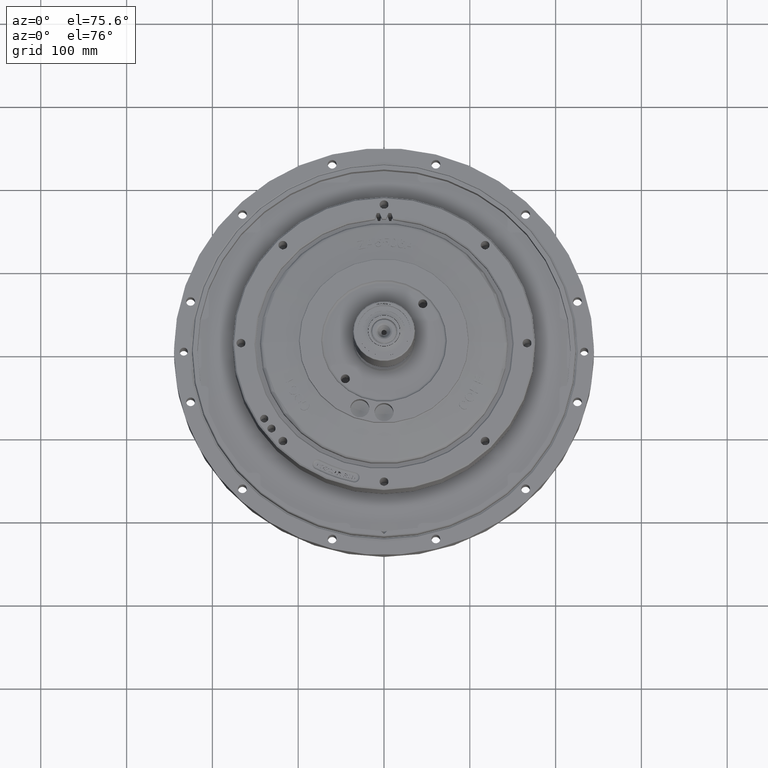
[diagram: clean part render]
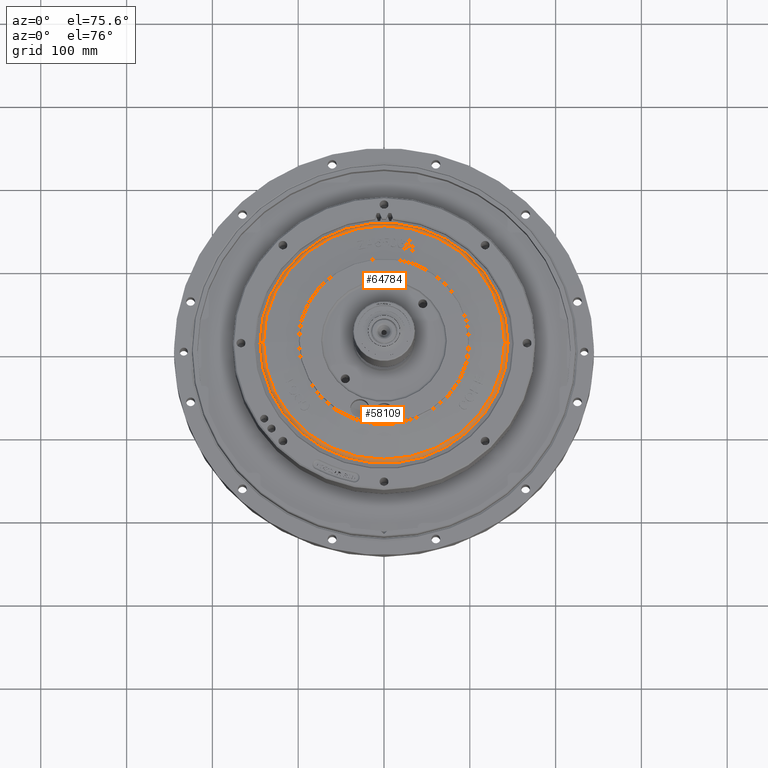
[diagram: same view with one multi-face feature highlighted, each face labeled with its STEP entity id]
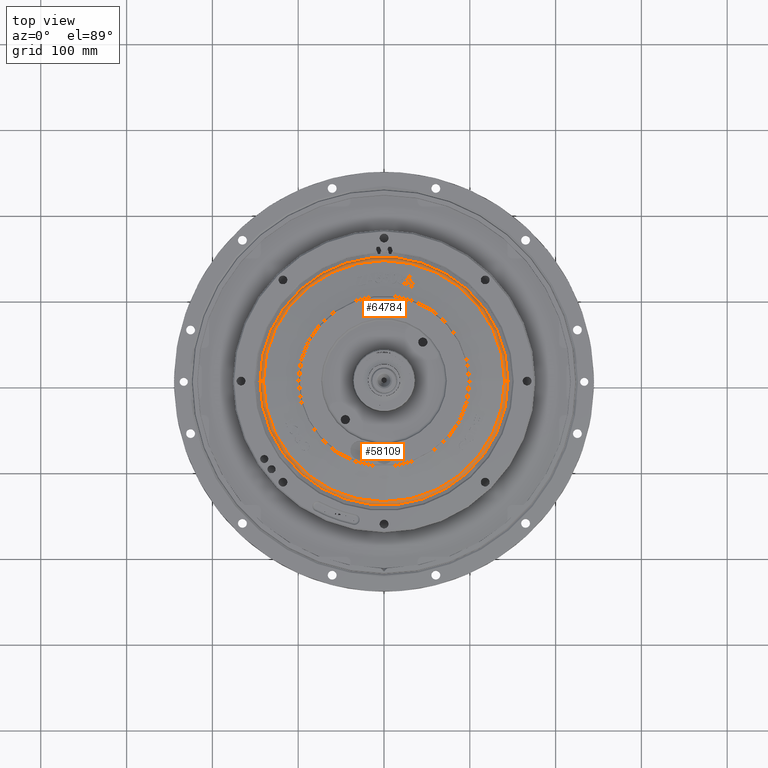
[diagram: same view with one multi-face feature highlighted, each face labeled with its STEP entity id]
A machine part, auxiliary view. The highlighted faces form ONE feature: a constant-radius fillet chain: 2 tangent blend faces with common blend radius 4.826 mm. The faces share edges in the B-rep.
A second angle (top view) of the same feature is appended — it is thin or edge-on in the first view.
Their STEP definitions:
[1] entity #58109 (Torus):
#3304 = DIRECTION ( 'NONE',  ( 1.000000000000000000, 0.0000000000000000000, 0.0000000000000000000 ) ) ;
#3310 = CARTESIAN_POINT ( 'NONE',  ( 0.0000000000000000000, 0.0000000000000000000, 38.10663730205632000 ) ) ;
#3343 = DIRECTION ( 'NONE',  ( -0.0000000000000000000, -0.0000000000000000000, 1.000000000000000000 ) ) ;
#12590 = FACE_OUTER_BOUND ( 'NONE', #30695, .T. ) ;
#12681 = TOROIDAL_SURFACE ( 'NONE', #36253, 139.8707088640026900, 4.826000000000065300 ) ;
#18363 = EDGE_CURVE ( 'NONE', #22300, #22148, #34083, .T. ) ;
#18372 = EDGE_CURVE ( 'NONE', #22106, #22300, #34111, .T. ) ;
#18373 = EDGE_CURVE ( 'NONE', #22148, #22013, #34114, .T. ) ;
#18445 = EDGE_CURVE ( 'NONE', #22106, #22013, #34322, .T. ) ;
#22013 = VERTEX_POINT ( 'NONE', #26258 ) ;
#22106 = VERTEX_POINT ( 'NONE', #26410 ) ;
#22148 = VERTEX_POINT ( 'NONE', #26196 ) ;
#22300 = VERTEX_POINT ( 'NONE', #26310 ) ;
#22408 = AXIS2_PLACEMENT_3D ( 'NONE', #48693, #48694, #48695 ) ;
#22413 = AXIS2_PLACEMENT_3D ( 'NONE', #48618, #49062, #49059 ) ;
#22463 = AXIS2_PLACEMENT_3D ( 'NONE', #48683, #49063, #49055 ) ;
#22557 = AXIS2_PLACEMENT_3D ( 'NONE', #48945, #48560, #48561 ) ;
#26196 = CARTESIAN_POINT ( 'NONE',  ( -140.5075037659497900, 1.744938014824897800E-014, 42.89044000000024000 ) ) ;
#26258 = CARTESIAN_POINT ( 'NONE',  ( 140.5075037659497900, 0.0000000000000000000, 42.89044000000024000 ) ) ;
#26310 = CARTESIAN_POINT ( 'NONE',  ( -144.4625000000000100, 1.769155382218244900E-014, 39.59180738099582400 ) ) ;
#26410 = CARTESIAN_POINT ( 'NONE',  ( 144.4625000000000100, 0.0000000000000000000, 39.59180738099582400 ) ) ;
#30695 = EDGE_LOOP ( 'NONE', ( #32484, #32879, #32637, #32549 ) ) ;
#32484 = ORIENTED_EDGE ( 'NONE', *, *, #18363, .F. ) ;
#32549 = ORIENTED_EDGE ( 'NONE', *, *, #18373, .F. ) ;
#32637 = ORIENTED_EDGE ( 'NONE', *, *, #18445, .T. ) ;
#32879 = ORIENTED_EDGE ( 'NONE', *, *, #18372, .F. ) ;
#34083 = CIRCLE ( 'NONE', #22408, 4.826000000000052000 ) ;
#34111 = CIRCLE ( 'NONE', #22413, 144.4625000000000100 ) ;
#34114 = CIRCLE ( 'NONE', #22463, 140.5075037659497900 ) ;
#34322 = CIRCLE ( 'NONE', #22557, 4.826000000000066200 ) ;
#36253 = AXIS2_PLACEMENT_3D ( 'NONE', #3310, #3343, #3304 ) ;
#48560 = DIRECTION ( 'NONE',  ( 0.0000000000000000000, -1.000000000000000000, 0.0000000000000000000 ) ) ;
#48561 = DIRECTION ( 'NONE',  ( 0.0000000000000000000, 0.0000000000000000000, -1.000000000000000000 ) ) ;
#48618 = CARTESIAN_POINT ( 'NONE',  ( 0.0000000000000000000, 0.0000000000000000000, 39.59180738099582400 ) ) ;
#48683 = CARTESIAN_POINT ( 'NONE',  ( 0.0000000000000000000, 0.0000000000000000000, 42.89044000000024000 ) ) ;
#48693 = CARTESIAN_POINT ( 'NONE',  ( -139.8707088640026900, 1.712922159047722100E-014, 38.10663730205632000 ) ) ;
#48694 = DIRECTION ( 'NONE',  ( 1.224646799147353200E-016, 1.000000000000000000, 0.0000000000000000000 ) ) ;
#48695 = DIRECTION ( 'NONE',  ( -1.000000000000000000, 1.224646799147355900E-016, 0.0000000000000000000 ) ) ;
#48945 = CARTESIAN_POINT ( 'NONE',  ( 139.8707088640026900, 0.0000000000000000000, 38.10663730205632000 ) ) ;
#49055 = DIRECTION ( 'NONE',  ( 1.000000000000000000, 0.0000000000000000000, 0.0000000000000000000 ) ) ;
#49059 = DIRECTION ( 'NONE',  ( -1.000000000000000000, 0.0000000000000000000, 0.0000000000000000000 ) ) ;
#49062 = DIRECTION ( 'NONE',  ( 0.0000000000000000000, 0.0000000000000000000, -1.000000000000000000 ) ) ;
#49063 = DIRECTION ( 'NONE',  ( -0.0000000000000000000, -0.0000000000000000000, 1.000000000000000000 ) ) ;
#58109 = ADVANCED_FACE ( 'NONE', ( #12590 ), #12681, .T. ) ;
[2] entity #64784 (Torus):
#6288 = FACE_OUTER_BOUND ( 'NONE', #31000, .T. ) ;
#6297 = TOROIDAL_SURFACE ( 'NONE', #20468, 139.8707088640026900, 4.826000000000065300 ) ;
#18352 = EDGE_CURVE ( 'NONE', #22013, #22148, #34047, .T. ) ;
#18362 = EDGE_CURVE ( 'NONE', #22300, #22106, #34079, .T. ) ;
#18363 = EDGE_CURVE ( 'NONE', #22300, #22148, #34083, .T. ) ;
#18445 = EDGE_CURVE ( 'NONE', #22106, #22013, #34322, .T. ) ;
#20468 = AXIS2_PLACEMENT_3D ( 'NONE', #44939, #45159, #44590 ) ;
#22013 = VERTEX_POINT ( 'NONE', #26258 ) ;
#22106 = VERTEX_POINT ( 'NONE', #26410 ) ;
#22148 = VERTEX_POINT ( 'NONE', #26196 ) ;
#22300 = VERTEX_POINT ( 'NONE', #26310 ) ;
#22402 = AXIS2_PLACEMENT_3D ( 'NONE', #48657, #48658, #48659 ) ;
#22408 = AXIS2_PLACEMENT_3D ( 'NONE', #48693, #48694, #48695 ) ;
#22409 = AXIS2_PLACEMENT_3D ( 'NONE', #48690, #48691, #48692 ) ;
#22557 = AXIS2_PLACEMENT_3D ( 'NONE', #48945, #48560, #48561 ) ;
#26196 = CARTESIAN_POINT ( 'NONE',  ( -140.5075037659497900, 1.744938014824897800E-014, 42.89044000000024000 ) ) ;
#26258 = CARTESIAN_POINT ( 'NONE',  ( 140.5075037659497900, 0.0000000000000000000, 42.89044000000024000 ) ) ;
#26310 = CARTESIAN_POINT ( 'NONE',  ( -144.4625000000000100, 1.769155382218244900E-014, 39.59180738099582400 ) ) ;
#26410 = CARTESIAN_POINT ( 'NONE',  ( 144.4625000000000100, 0.0000000000000000000, 39.59180738099582400 ) ) ;
#31000 = EDGE_LOOP ( 'NONE', ( #32333, #31215, #31327, #32725 ) ) ;
#31215 = ORIENTED_EDGE ( 'NONE', *, *, #18363, .T. ) ;
#31327 = ORIENTED_EDGE ( 'NONE', *, *, #18352, .F. ) ;
#32333 = ORIENTED_EDGE ( 'NONE', *, *, #18362, .F. ) ;
#32725 = ORIENTED_EDGE ( 'NONE', *, *, #18445, .F. ) ;
#34047 = CIRCLE ( 'NONE', #22402, 140.5075037659497900 ) ;
#34079 = CIRCLE ( 'NONE', #22409, 144.4625000000000100 ) ;
#34083 = CIRCLE ( 'NONE', #22408, 4.826000000000052000 ) ;
#34322 = CIRCLE ( 'NONE', #22557, 4.826000000000066200 ) ;
#44590 = DIRECTION ( 'NONE',  ( 1.000000000000000000, 0.0000000000000000000, 0.0000000000000000000 ) ) ;
#44939 = CARTESIAN_POINT ( 'NONE',  ( 0.0000000000000000000, 0.0000000000000000000, 38.10663730205632000 ) ) ;
#45159 = DIRECTION ( 'NONE',  ( -0.0000000000000000000, -0.0000000000000000000, 1.000000000000000000 ) ) ;
#48560 = DIRECTION ( 'NONE',  ( 0.0000000000000000000, -1.000000000000000000, 0.0000000000000000000 ) ) ;
#48561 = DIRECTION ( 'NONE',  ( 0.0000000000000000000, 0.0000000000000000000, -1.000000000000000000 ) ) ;
#48657 = CARTESIAN_POINT ( 'NONE',  ( 0.0000000000000000000, 0.0000000000000000000, 42.89044000000024000 ) ) ;
#48658 = DIRECTION ( 'NONE',  ( -0.0000000000000000000, -0.0000000000000000000, 1.000000000000000000 ) ) ;
#48659 = DIRECTION ( 'NONE',  ( 1.000000000000000000, 0.0000000000000000000, 0.0000000000000000000 ) ) ;
#48690 = CARTESIAN_POINT ( 'NONE',  ( 0.0000000000000000000, 0.0000000000000000000, 39.59180738099582400 ) ) ;
#48691 = DIRECTION ( 'NONE',  ( 0.0000000000000000000, 0.0000000000000000000, -1.000000000000000000 ) ) ;
#48692 = DIRECTION ( 'NONE',  ( -1.000000000000000000, 0.0000000000000000000, 0.0000000000000000000 ) ) ;
#48693 = CARTESIAN_POINT ( 'NONE',  ( -139.8707088640026900, 1.712922159047722100E-014, 38.10663730205632000 ) ) ;
#48694 = DIRECTION ( 'NONE',  ( 1.224646799147353200E-016, 1.000000000000000000, 0.0000000000000000000 ) ) ;
#48695 = DIRECTION ( 'NONE',  ( -1.000000000000000000, 1.224646799147355900E-016, 0.0000000000000000000 ) ) ;
#48945 = CARTESIAN_POINT ( 'NONE',  ( 139.8707088640026900, 0.0000000000000000000, 38.10663730205632000 ) ) ;
#64784 = ADVANCED_FACE ( 'NONE', ( #6288 ), #6297, .T. ) ;